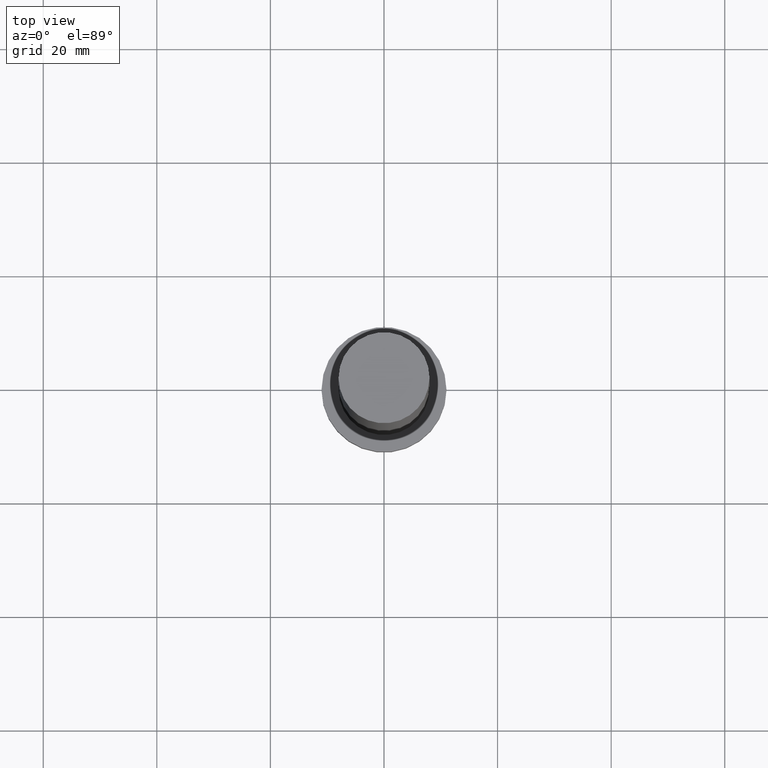
[diagram: clean part render]
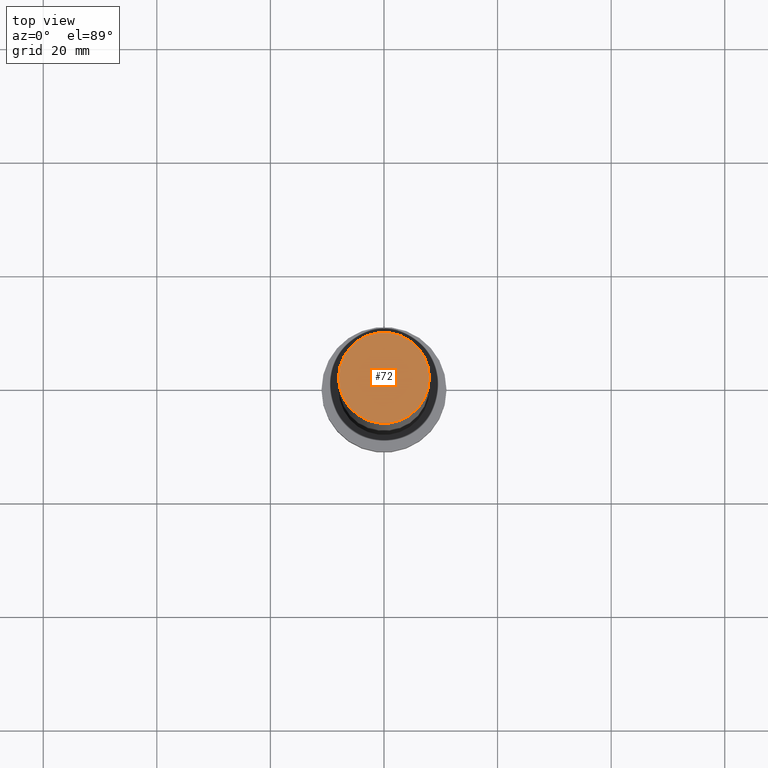
[diagram: same view with one face highlighted and labeled with its STEP entity id]
A machine part, top view. The second image highlights one B-rep face of the part: STEP entity #72.
In plain terms, the highlighted planar face has unit normal (0, 0, 1).
Its self-contained STEP definition (entity closure, byte-faithful):
#33 = DIRECTION ( 'NONE',  ( 1.000000000000000000, 0.000000000000000000, -0.000000000000000000 ) ) ;
#35 = DIRECTION ( 'NONE',  ( 1.000000000000000000, 0.000000000000000000, 0.000000000000000000 ) ) ;
#36 = AXIS2_PLACEMENT_3D ( 'NONE', #77, #164, #35 ) ;
#39 = DIRECTION ( 'NONE',  ( 0.000000000000000000, 0.000000000000000000, 1.000000000000000000 ) ) ;
#72 = ADVANCED_FACE ( 'NONE', ( #107 ), #122, .T. ) ;
#74 = DIRECTION ( 'NONE',  ( 1.000000000000000000, 0.000000000000000000, 0.000000000000000000 ) ) ;
#77 = CARTESIAN_POINT ( 'NONE',  ( 0.000000000000000000, 0.000000000000000000, 125.0000000000000000 ) ) ;
#80 = AXIS2_PLACEMENT_3D ( 'NONE', #233, #214, #33 ) ;
#106 = CIRCLE ( 'NONE', #126, 8.000000000000000000 ) ;
#107 = FACE_OUTER_BOUND ( 'NONE', #146, .T. ) ;
#122 = PLANE ( 'NONE',  #80 ) ;
#126 = AXIS2_PLACEMENT_3D ( 'NONE', #236, #39, #74 ) ;
#143 = VERTEX_POINT ( 'NONE', #182 ) ;
#146 = EDGE_LOOP ( 'NONE', ( #229, #180 ) ) ;
#153 = EDGE_CURVE ( 'NONE', #167, #143, #232, .T. ) ;
#164 = DIRECTION ( 'NONE',  ( 0.000000000000000000, 0.000000000000000000, 1.000000000000000000 ) ) ;
#167 = VERTEX_POINT ( 'NONE', #218 ) ;
#180 = ORIENTED_EDGE ( 'NONE', *, *, #153, .T. ) ;
#182 = CARTESIAN_POINT ( 'NONE',  ( -8.000000000000000000, 0.000000000000000000, 125.0000000000000000 ) ) ;
#214 = DIRECTION ( 'NONE',  ( 0.000000000000000000, 0.000000000000000000, 1.000000000000000000 ) ) ;
#218 = CARTESIAN_POINT ( 'NONE',  ( 8.000000000000000000, 9.797174393178825657E-16, 125.0000000000000000 ) ) ;
#229 = ORIENTED_EDGE ( 'NONE', *, *, #246, .T. ) ;
#232 = CIRCLE ( 'NONE', #36, 8.000000000000000000 ) ;
#233 = CARTESIAN_POINT ( 'NONE',  ( 0.000000000000000000, 0.000000000000000000, 125.0000000000000000 ) ) ;
#236 = CARTESIAN_POINT ( 'NONE',  ( 0.000000000000000000, 0.000000000000000000, 125.0000000000000000 ) ) ;
#246 = EDGE_CURVE ( 'NONE', #143, #167, #106, .T. ) ;